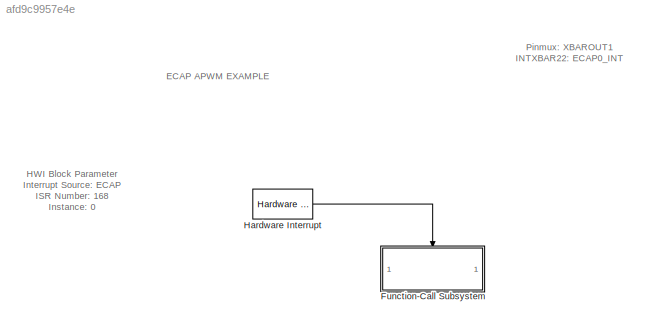
MODEL slx_afd9c9957e4e
KIND model
CONFIG AbsTol = auto
CONFIG EnableMultiTasking = off
CONFIG FixedStep = auto
CONFIG MaxStep = auto
CONFIG MinStep = auto
CONFIG RelTol = 1e-3
CONFIG SampleTimeConstraint = Unconstrained
CONFIG SolverName = FixedStepAuto
CONFIG StartTime = 0.0
CONFIG StopTime = 10.0
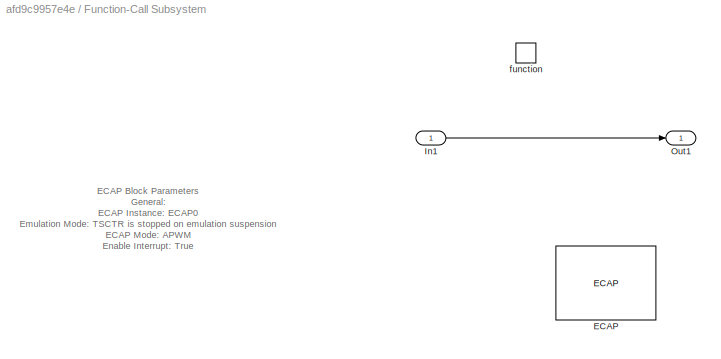
BLOCK [SubSystem] Function-Call Subsystem
  TreatAsAtomicUnit = on
BLOCK [Reference] Function-Call Subsystem/ECAP  REF=peripheral_library_blocks_am263px/ECAP
  SourceBlock = peripheral_library_blocks_am263px/ECAP
  SourceType = ECAP_AM263PX
BLOCK [Inport] Function-Call Subsystem/In1
BLOCK [Outport] Function-Call Subsystem/Out1
BLOCK [TriggerPort] Function-Call Subsystem/function
  StatesWhenEnabling = held
  TriggerType = function-call
  VariantControl = (inherit)
BLOCK [Reference] Hardware Interrupt  REF=HWI_lib/Hardware Interrupt
  SourceBlock = HWI_lib/Hardware Interrupt
  SourceProductName = Embedded Coder Support Package for AM263x - HWI Block
ANNOTATION (root): ECAP APWM EXAMPLE
ANNOTATION (root): HWI Block Parameter Interrupt Source: ECAP ISR Number: 168 Instance: 0
ANNOTATION (root): Pinmux: XBAROUT1 INTXBAR22: ECAP0_INT
ANNOTATION Function-Call Subsystem: ECAP Block Parameters General: ECAP Instance: ECAP0 Emulation Mode: TSCTR is stopped on emulation suspension ECAP Mode: APWM Enable Interrupt: True APWM Mode: APWM Polarity: APWM is active high APWM Period: 200000 APWM Compare: 100000 Interrupt: CNTR equals to period interrup: Enable
LINE Function-Call Subsystem/In1:1 -> Function-Call Subsystem/Out1:1
LINE Hardware Interrupt:1 -> Function-Call Subsystem:trigger
